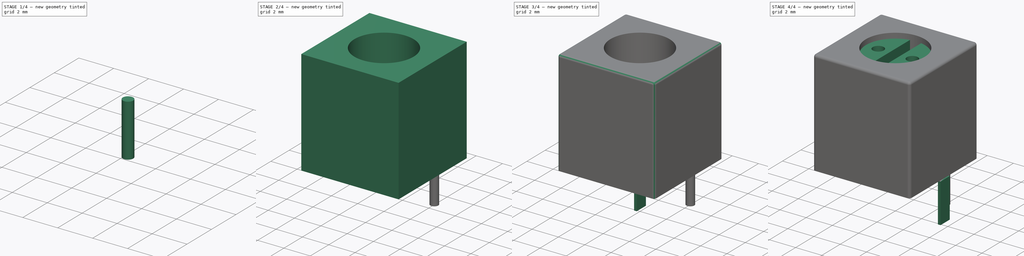
[diagram: build sequence overview — one tinted view per stage of 4, left to right]
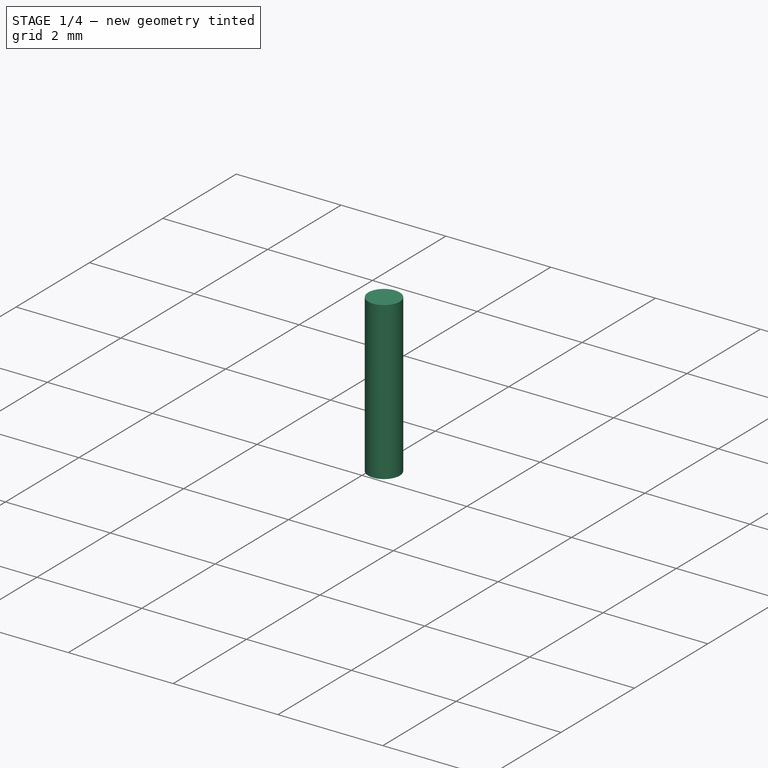
[diagram: stage 1 of 4 — iso view after this stage's code; geometry added in this stage tinted green]
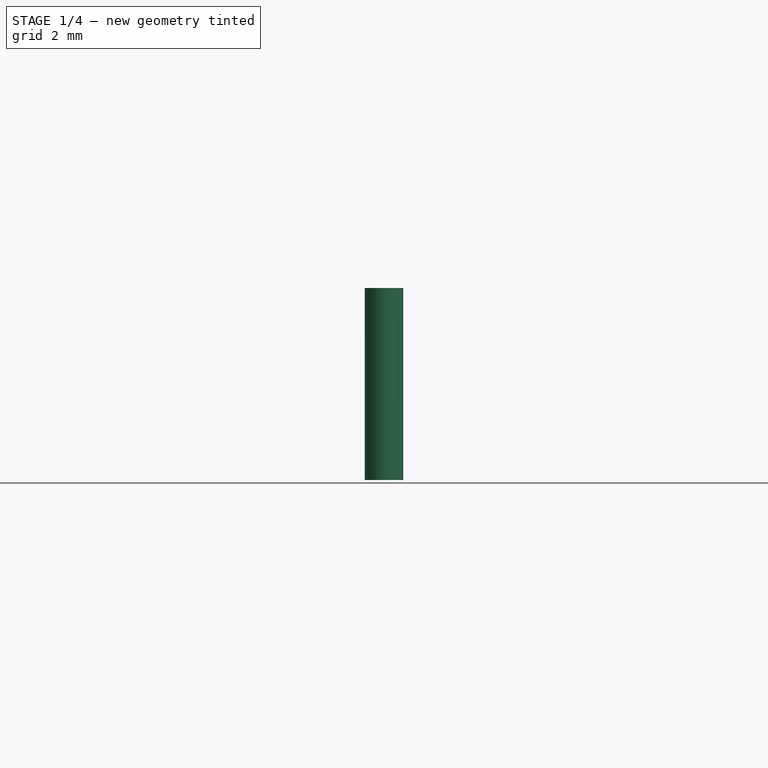
[diagram: stage 1 of 4 — front view after this stage's code; geometry added in this stage tinted green]
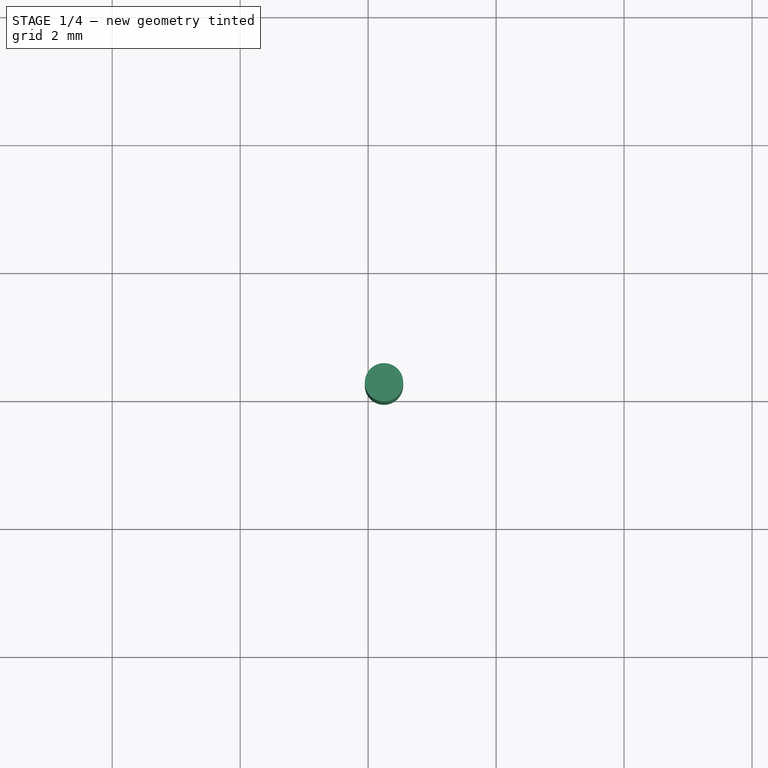
[diagram: stage 1 of 4 — top view after this stage's code; geometry added in this stage tinted green]
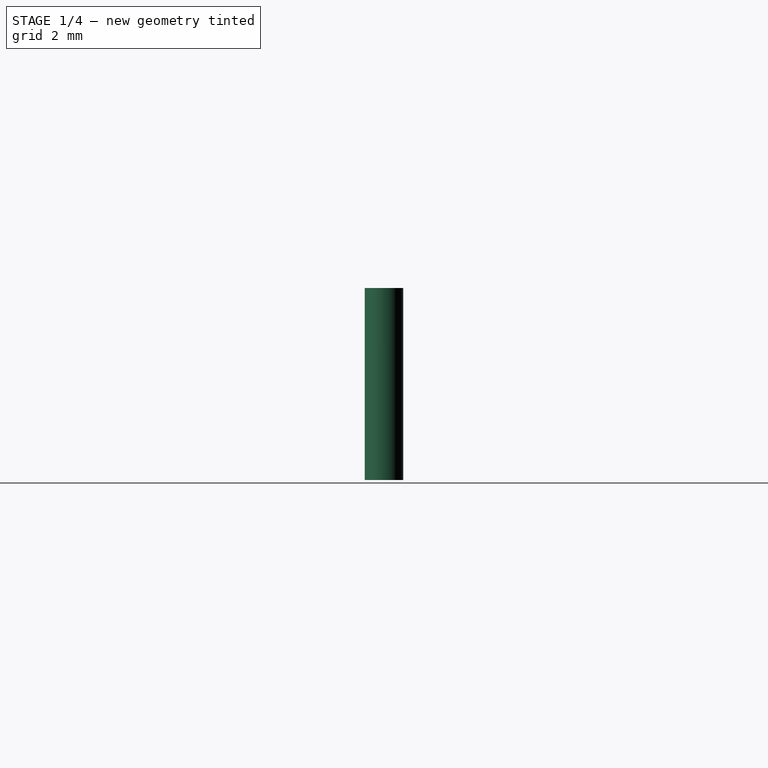
[diagram: stage 1 of 4 — right view after this stage's code; geometry added in this stage tinted green]
FCSTD DOCUMENT  (FreeCAD 0.19R24291 (Git))
Label: Variable_Coil_Shielded_7x7mm_5_6
License: All rights reserved
LicenseURL: http://en.wikipedia.org/wiki/All_rights_reserved
objects: PartDesign::Body×9, Sketcher::SketchObject×5, PartDesign::FeatureBase×5, PartDesign::Pad×4, App::Part×2, PartDesign::Fillet×1, PartDesign::Pocket×1
note: 31 computed .brp shape members not serialized (recipe doc carries the construction recipe); baked Part::Feature solids carry a one-line shape summary decoded from their .brp

FEATURE [Sketcher::SketchObject] Sketch
  FullyConstrained = true
  MapMode = 5
  Support = -> [XY_Plane]
  sketch-geometry (1):
    g0: Circle CenterX=0 CenterY=0 CenterZ=0 NormalX=0 NormalY=0 NormalZ=1 AngleXU=0 Radius=0.3
  constraints (2):
    c: Coincident(g0,g-1)
    c: Diameter(g0) = 0.6
FEATURE [PartDesign::Pad] Pad
  Direction = (1,1,1)
  Length = 3
  Length2 = 100
  Profile = -> Sketch
  Reversed = true
  Type = 0
FEATURE [PartDesign::Body] Body002  label="Pin_6"
  BaseFeature = -> Body001
  Group = -> [Clone001]
  Origin = -> Origin002
  Placement = pos=(0,-4.4958,0) rot=(0,0,1;0rad)
  Tip = -> Clone001
FEATURE [PartDesign::FeatureBase] Clone002
  BaseFeature = -> Body
  Placement = pos=(0,2.2479,0) rot=(0,0,1;0rad)
FEATURE [PartDesign::Body] Body003  label="Pin_3"
  BaseFeature = -> Body
  Group = -> [Clone002]
  Origin = -> Origin003
  Placement = pos=(2.2479,0,0) rot=(0,0,1;0rad)
  Tip = -> Clone002
FEATURE [PartDesign::FeatureBase] Clone003
  BaseFeature = -> Body003
  Placement = pos=(2.2479,0,0) rot=(0,0,1;0rad)
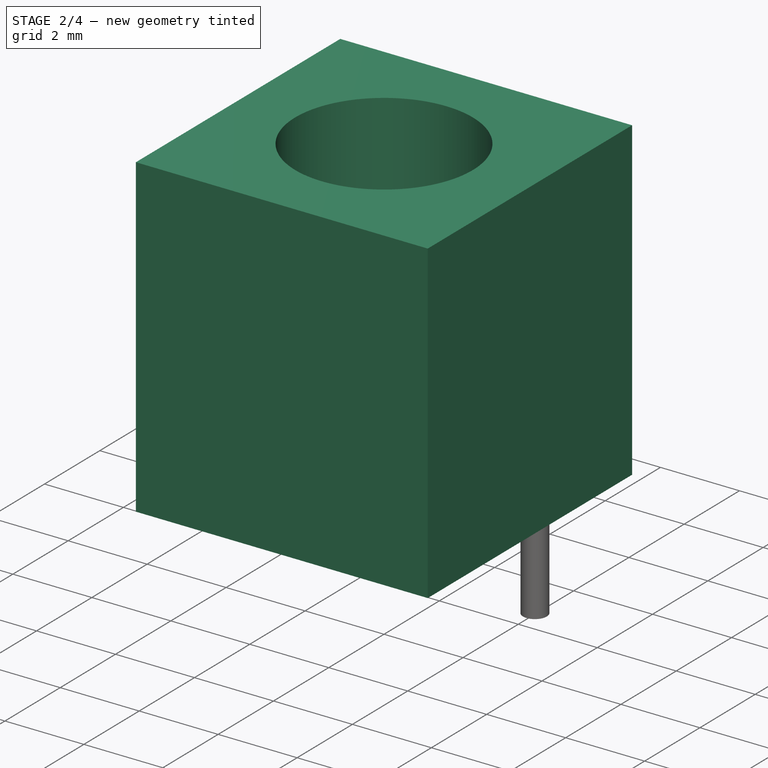
[diagram: stage 2 of 4 — iso view after this stage's code; geometry added in this stage tinted green]
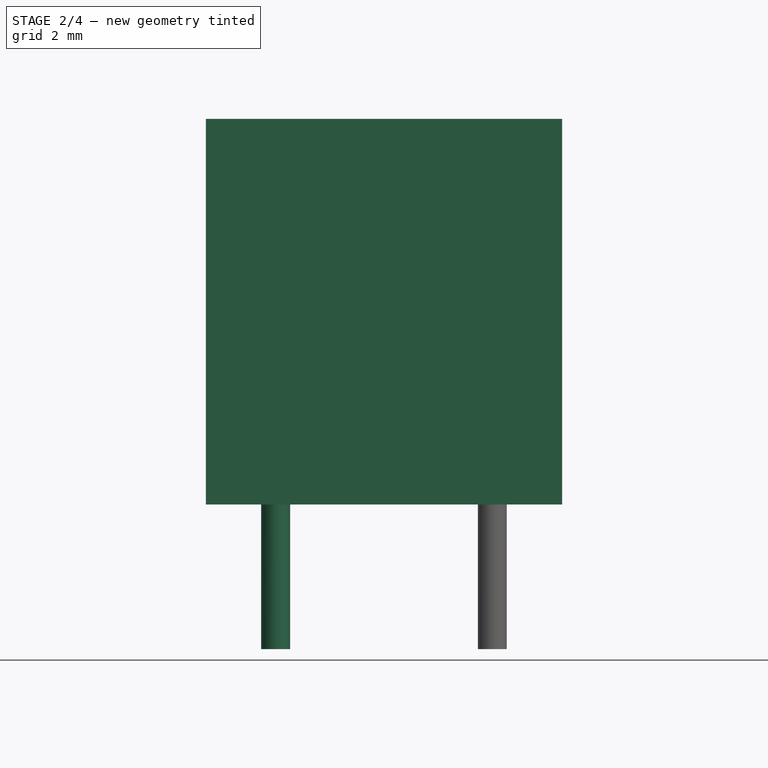
[diagram: stage 2 of 4 — front view after this stage's code; geometry added in this stage tinted green]
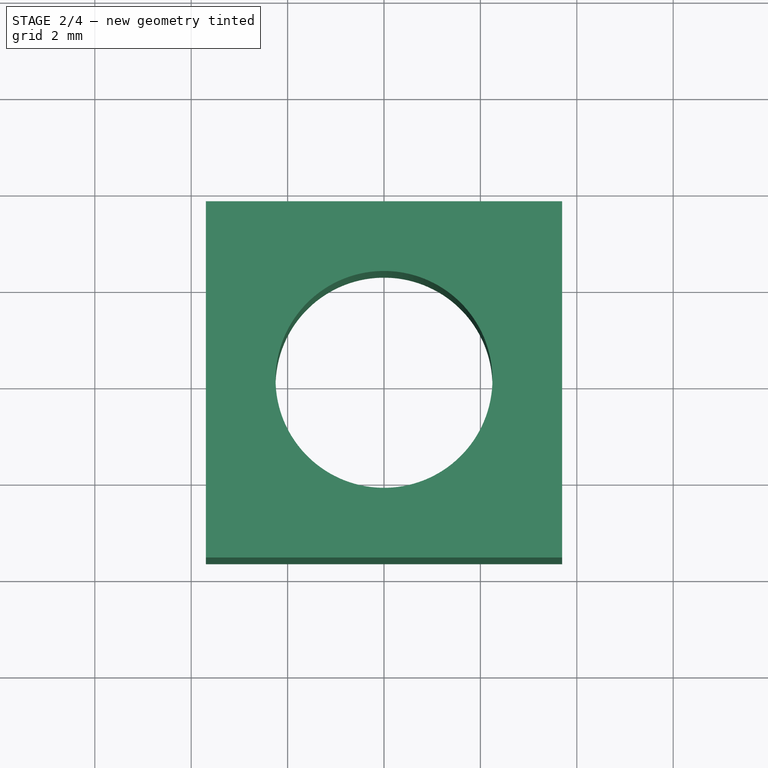
[diagram: stage 2 of 4 — top view after this stage's code; geometry added in this stage tinted green]
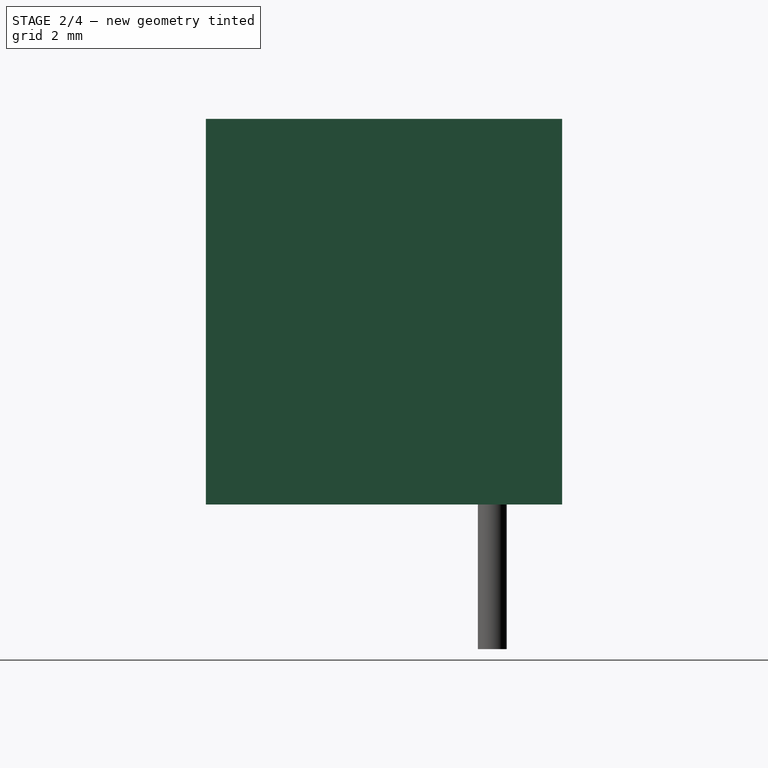
[diagram: stage 2 of 4 — right view after this stage's code; geometry added in this stage tinted green]
FEATURE [PartDesign::Body] Body  label="Pin_2"
  Group = -> [Sketch,Pad]
  Origin = -> Origin
  Placement = pos=(0,2.2479,0) rot=(0,0,1;0rad)
  Tip = -> Pad
FEATURE [PartDesign::FeatureBase] Clone
  BaseFeature = -> Body
  Placement = pos=(0,2.2479,0) rot=(0,0,1;0rad)
FEATURE [PartDesign::Body] Body001  label="Pin_1"
  BaseFeature = -> Body
  Group = -> [Clone]
  Origin = -> Origin001
  Placement = pos=(-2.2479,0,0) rot=(0,0,1;0rad)
  Tip = -> Clone
FEATURE [PartDesign::FeatureBase] Clone001
  BaseFeature = -> Body001
  Placement = pos=(-2.2479,0,0) rot=(0,0,1;0rad)
FEATURE [PartDesign::Body] Body006  label="Shield_Foot_2"
  BaseFeature = -> Body005
  Group = -> [Clone004]
  Origin = -> Origin006
  Placement = pos=(-7.3914,0,0.2) rot=(0,0,1;0rad)
  Tip = -> Clone004
FEATURE [Sketcher::SketchObject] Sketch002
  FullyConstrained = true
  MapMode = 5
  Support = -> [XY_Plane007]
  sketch-geometry (5):
    g0: LineSegment StartX=-3.6957 StartY=3.6957 StartZ=0 EndX=3.6957 EndY=3.6957 EndZ=0
    g1: LineSegment StartX=3.6957 StartY=3.6957 StartZ=0 EndX=3.6957 EndY=-3.6957 EndZ=0
    g2: LineSegment StartX=3.6957 StartY=-3.6957 StartZ=0 EndX=-3.6957 EndY=-3.6957 EndZ=0
    g3: LineSegment StartX=-3.6957 StartY=-3.6957 StartZ=0 EndX=-3.6957 EndY=3.6957 EndZ=0
    g4: Circle CenterX=0 CenterY=0 CenterZ=0 NormalX=0 NormalY=0 NormalZ=1 AngleXU=0 Radius=2.25
  constraints (14):
    c: Coincident(g0,g1)
    c: Coincident(g1,g2)
    c: Coincident(g2,g3)
    c: Coincident(g3,g0)
    c: Horizontal(g0)
    c: Horizontal(g2)
    c: Vertical(g1)
    c: Vertical(g3)
    c: DistanceX(g0,g0) = 7.3914
    c: Equal(g0,g3)
    c: DistanceY(g-1,g0) = 3.6957
    c: DistanceX(g0,g-1) = 3.6957
    c: Coincident(g4,g-1)
    c: Diameter(g4) = 4.5
FEATURE [PartDesign::Pad] Pad002
  Direction = (1,1,1)
  Length = 8
  Length2 = 100
  Profile = -> Sketch002
  Type = 0
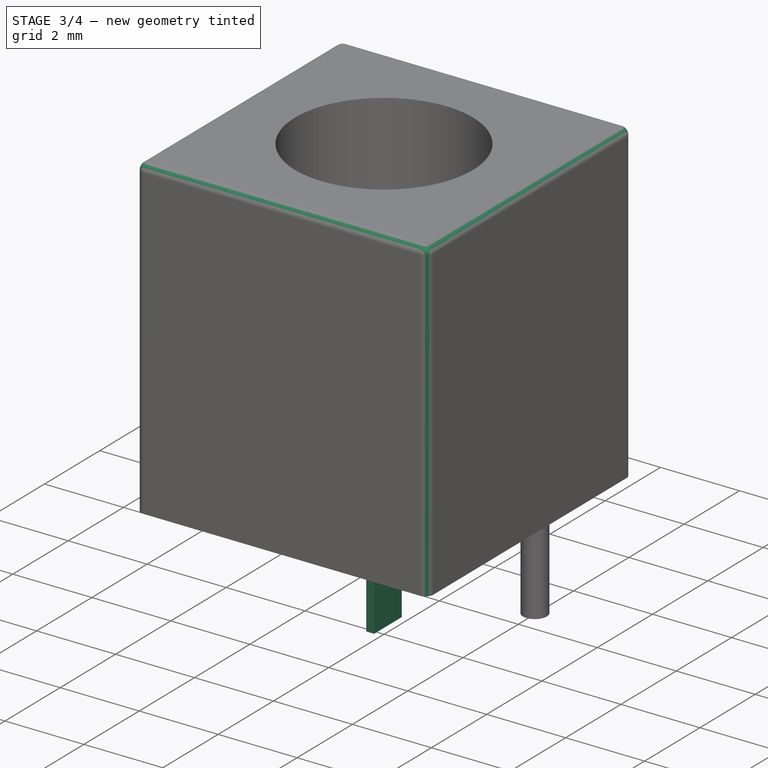
[diagram: stage 3 of 4 — iso view after this stage's code; geometry added in this stage tinted green]
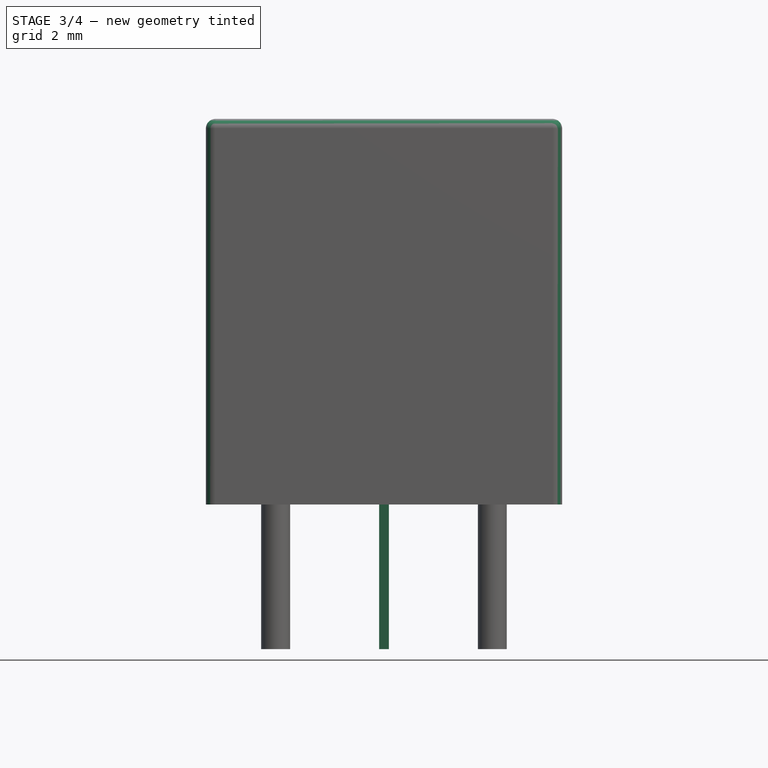
[diagram: stage 3 of 4 — front view after this stage's code; geometry added in this stage tinted green]
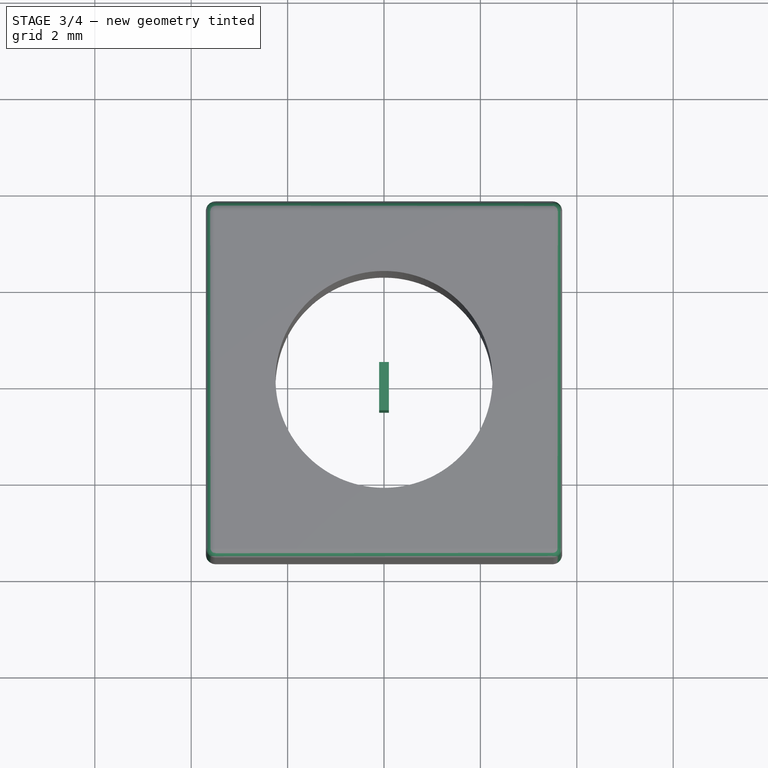
[diagram: stage 3 of 4 — top view after this stage's code; geometry added in this stage tinted green]
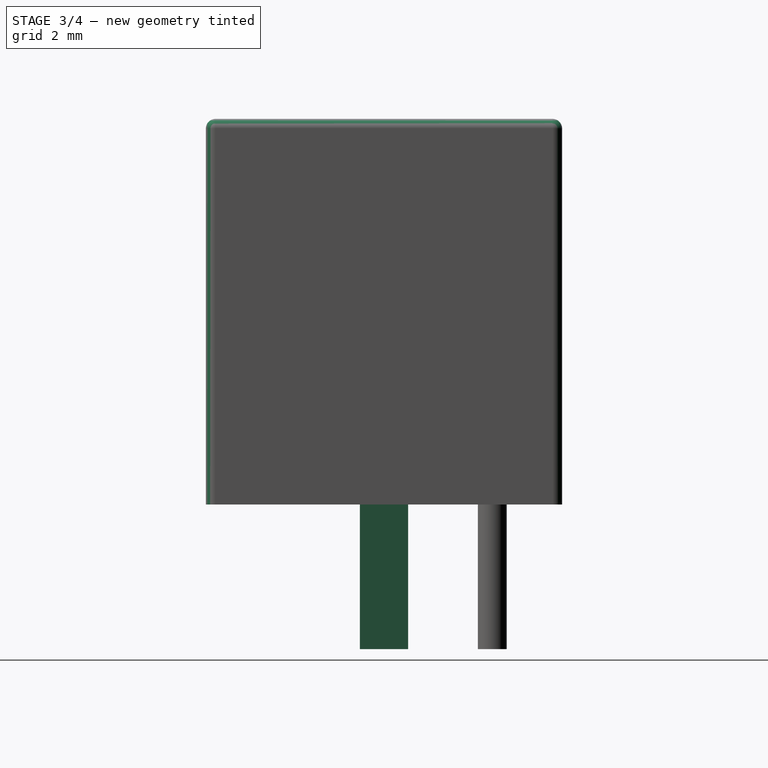
[diagram: stage 3 of 4 — right view after this stage's code; geometry added in this stage tinted green]
FEATURE [PartDesign::Body] Body004  label="Pin_4"
  BaseFeature = -> Body003
  Group = -> [Clone003]
  Origin = -> Origin004
  Placement = pos=(0,-4.4958,0) rot=(0,0,1;0rad)
  Tip = -> Clone003
FEATURE [Sketcher::SketchObject] Sketch001
  FullyConstrained = true
  MapMode = 5
  Support = -> [XY_Plane005]
  sketch-geometry (4):
    g0: LineSegment StartX=-0.1 StartY=0.5 StartZ=0 EndX=0.1 EndY=0.5 EndZ=0
    g1: LineSegment StartX=0.1 StartY=0.5 StartZ=0 EndX=0.1 EndY=-0.5 EndZ=0
    g2: LineSegment StartX=0.1 StartY=-0.5 StartZ=0 EndX=-0.1 EndY=-0.5 EndZ=0
    g3: LineSegment StartX=-0.1 StartY=-0.5 StartZ=0 EndX=-0.1 EndY=0.5 EndZ=0
  constraints (12):
    c: Coincident(g0,g1)
    c: Coincident(g1,g2)
    c: Coincident(g2,g3)
    c: Coincident(g3,g0)
    c: Horizontal(g0)
    c: Horizontal(g2)
    c: Vertical(g1)
    c: Vertical(g3)
    c: DistanceX(g0,g-1) = 0.1
    c: DistanceX(g0,g0) = 0.2
    c: DistanceY(g-1,g0) = 0.5
    c: DistanceY(g2,g0) = 1
FEATURE [PartDesign::Pad] Pad001
  Direction = (1,1,1)
  Length = 3
  Length2 = 100
  Profile = -> Sketch001
  Reversed = true
  Type = 0
FEATURE [PartDesign::Fillet] Fillet
  Base = -> Pad002 [Edge7,Edge10,Edge12,Edge4,Edge5,Edge8,Edge2,Edge1]
  BaseFeature = -> Pad002
  Radius = 0.2
  SupportTransform = false
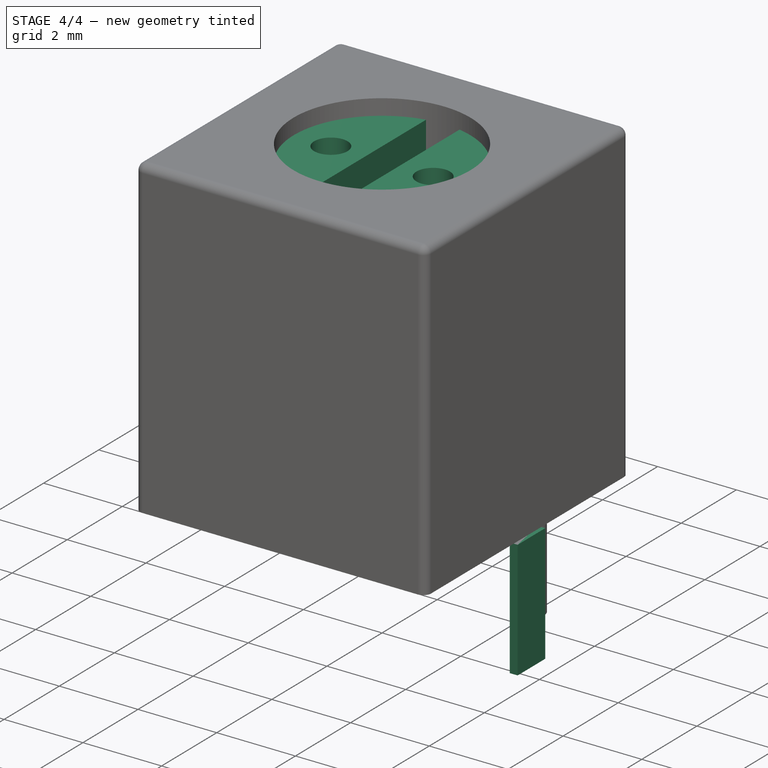
[diagram: stage 4 of 4 — iso view after this stage's code; geometry added in this stage tinted green]
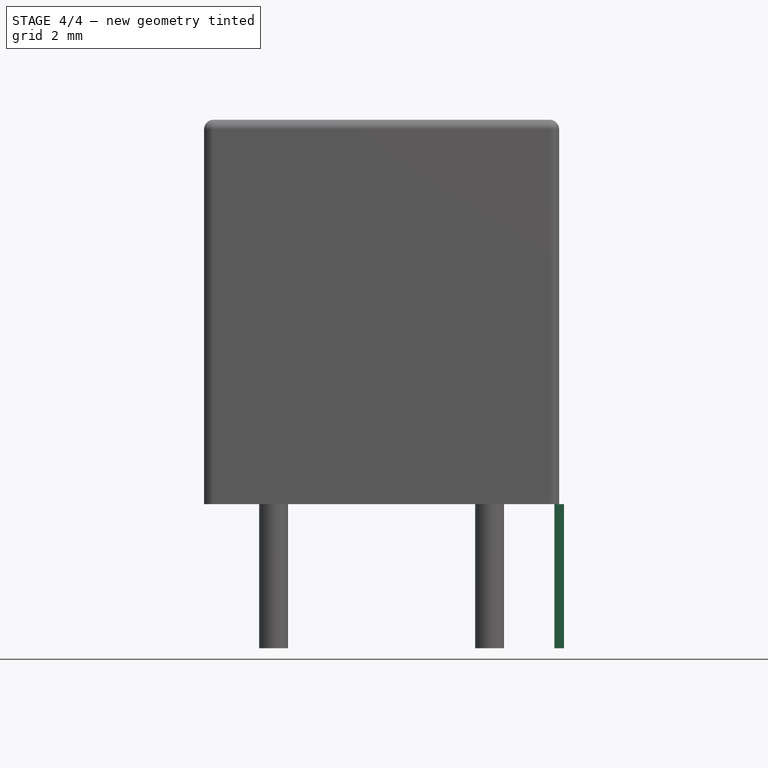
[diagram: stage 4 of 4 — front view after this stage's code; geometry added in this stage tinted green]
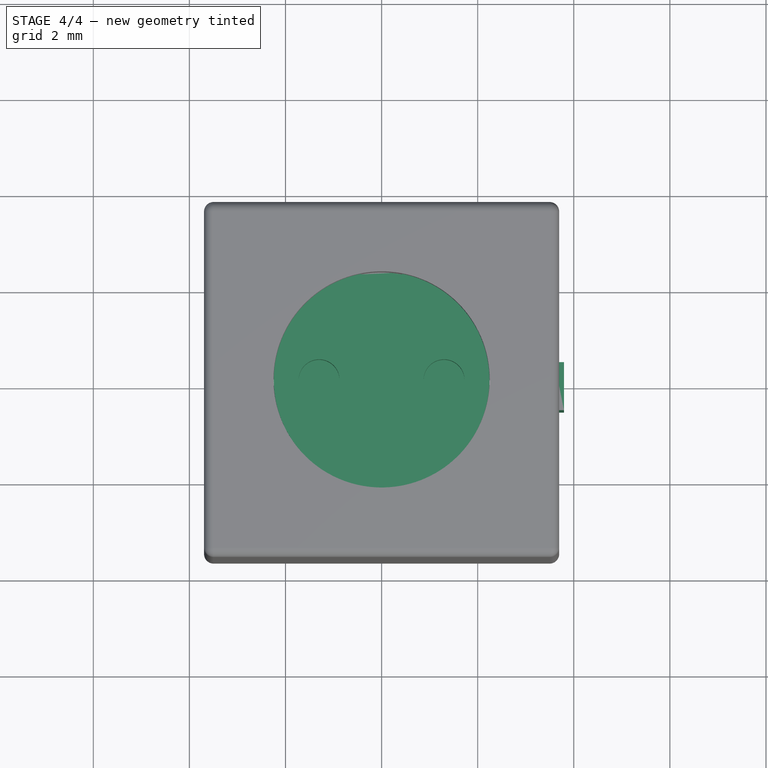
[diagram: stage 4 of 4 — top view after this stage's code; geometry added in this stage tinted green]
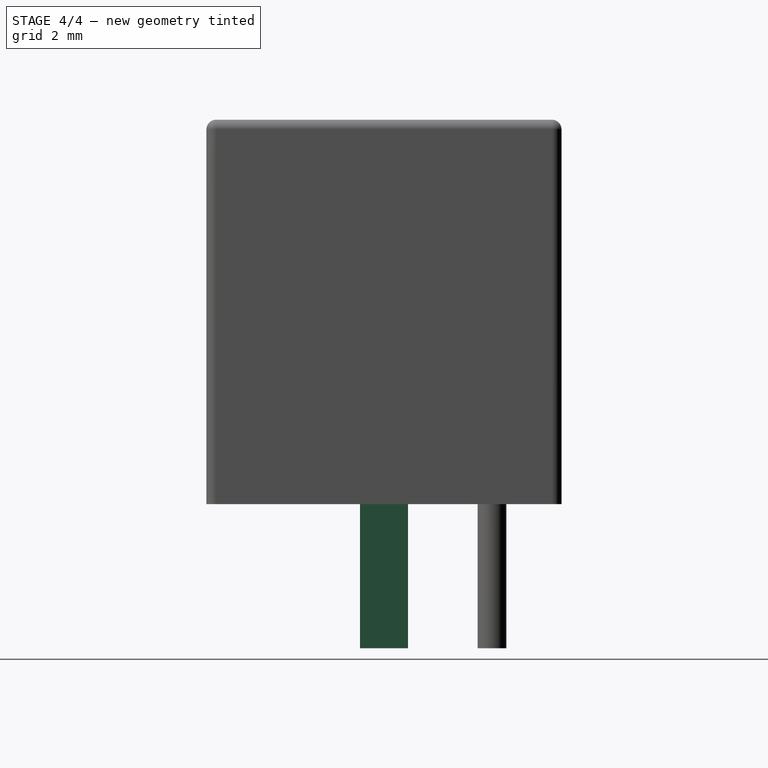
[diagram: stage 4 of 4 — right view after this stage's code; geometry added in this stage tinted green]
FEATURE [PartDesign::Body] Body005  label="Shield_Foot_1"
  Group = -> [Sketch001,Pad001]
  Origin = -> Origin005
  Placement = pos=(3.6957,0,0.2) rot=(0,0,1;0rad)
  Tip = -> Pad001
FEATURE [PartDesign::FeatureBase] Clone004
  BaseFeature = -> Body005
  Placement = pos=(3.6957,0,0) rot=(0,0,1;0rad)
FEATURE [PartDesign::Body] Body007  label="Shield_Body"
  Group = -> [Sketch002,Pad002,Fillet]
  Origin = -> Origin007
  Tip = -> Fillet
FEATURE [Sketcher::SketchObject] Sketch003
  FullyConstrained = true
  MapMode = 5
  Support = -> [XY_Plane008]
  sketch-geometry (1):
    g0: Circle CenterX=0 CenterY=0 CenterZ=0 NormalX=0 NormalY=0 NormalZ=1 AngleXU=0 Radius=2.245
  constraints (2):
    c: Coincident(g0,g-1)
    c: Diameter(g0) = 4.49
FEATURE [Sketcher::SketchObject] Sketch004
  AttachmentOffset = pos=(0,0,7.6) rot=(0,0,1;0rad)
  FullyConstrained = true
  MapMode = 5
  Placement = pos=(0,0,7.6) rot=(0,0,1;0rad)
  Support = -> [XY_Plane008]
  sketch-geometry (6):
    g0: LineSegment StartX=-0.425 StartY=2.5 StartZ=0 EndX=0.425 EndY=2.5 EndZ=0
    g1: LineSegment StartX=0.425 StartY=2.5 StartZ=0 EndX=0.425 EndY=-2.5 EndZ=0
    g2: LineSegment StartX=0.425 StartY=-2.5 StartZ=0 EndX=-0.425 EndY=-2.5 EndZ=0
    g3: LineSegment StartX=-0.425 StartY=-2.5 StartZ=0 EndX=-0.425 EndY=2.5 EndZ=0
    g4: Circle CenterX=-1.3 CenterY=0 CenterZ=0 NormalX=0 NormalY=0 NormalZ=1 AngleXU=0 Radius=0.425
    g5: Circle CenterX=1.3 CenterY=0 CenterZ=0 NormalX=0 NormalY=0 NormalZ=1 AngleXU=0 Radius=0.425
  constraints (18):
    c: Coincident(g0,g1)
    c: Coincident(g1,g2)
    c: Coincident(g2,g3)
    c: Coincident(g3,g0)
    c: Horizontal(g0)
    c: Horizontal(g2)
    c: Vertical(g1)
    c: Vertical(g3)
    c: DistanceY(g1,g1) = 5
    c: DistanceY(g-1,g0) = 2.5
    c: DistanceX(g2,g2) = 0.85
    c: DistanceX(g2,g-1) = 0.425
    c: PointOnObject(g4,g-1)
    c: PointOnObject(g5,g-1)
    c: DistanceX(g4,g-1) = 1.3
    c: DistanceX(g-1,g5) = 1.3
    c: Equal(g4,g5)
    c: Diameter(g4) = 0.85
FEATURE [PartDesign::Pad] Pad003
  Direction = (1,1,1)
  Length = 7.6
  Length2 = 100
  Profile = -> Sketch003
  Type = 0
FEATURE [PartDesign::Pocket] Pocket
  BaseFeature = -> Pad003
  Length = 0.7
  Length2 = 100
  Profile = -> Sketch004
  Type = 0
FEATURE [PartDesign::Body] Body008  label="Tuner"
  Group = -> [Sketch003,Sketch004,Pad003,Pocket]
  Origin = -> Origin008
  Tip = -> Pocket
FEATURE [App::Part] Part  label="Shield"
  Group = -> [Body005,Body006,Body007]
  Origin = -> Origin009
FEATURE [App::Part] Part001  label="Pins"
  Group = -> [Body,Body001,Body002,Body003,Body004]
  Origin = -> Origin010
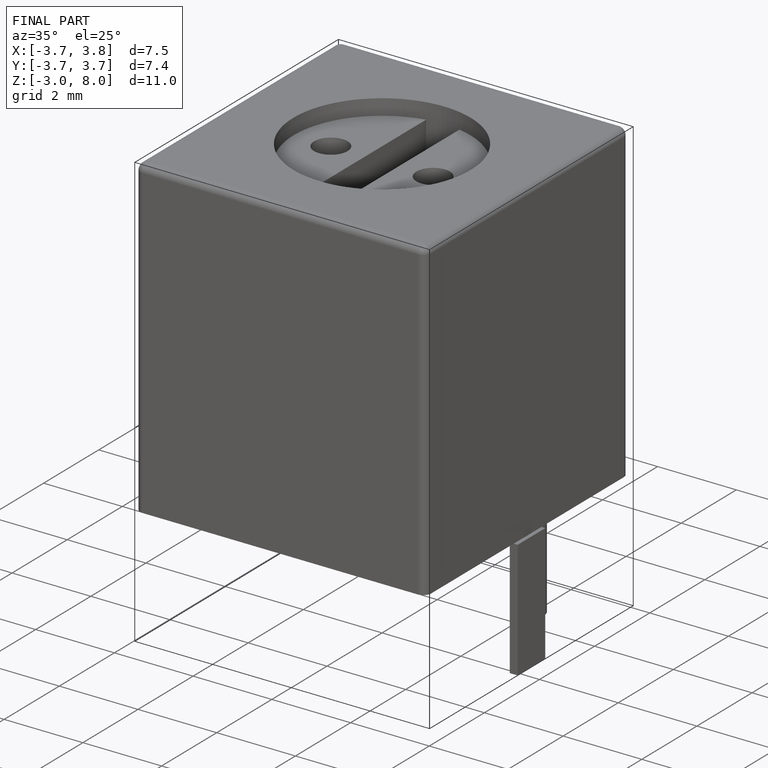
[diagram: finished part — iso view with bounding-box wireframe]
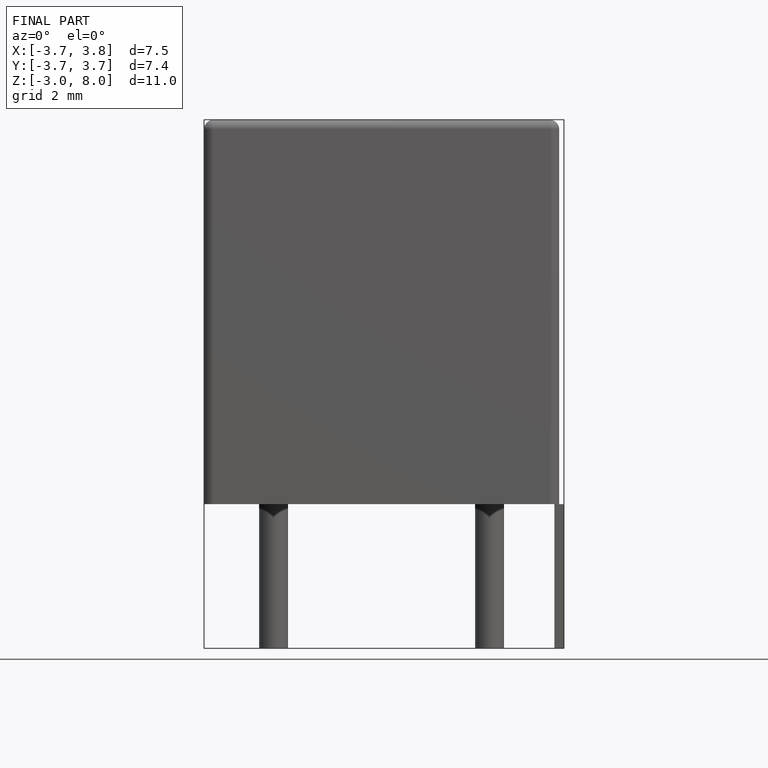
[diagram: finished part — front view with bounding-box wireframe]
